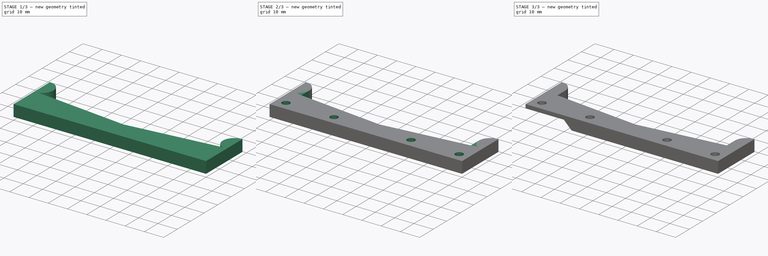
[diagram: build sequence overview — one tinted view per stage of 3, left to right]
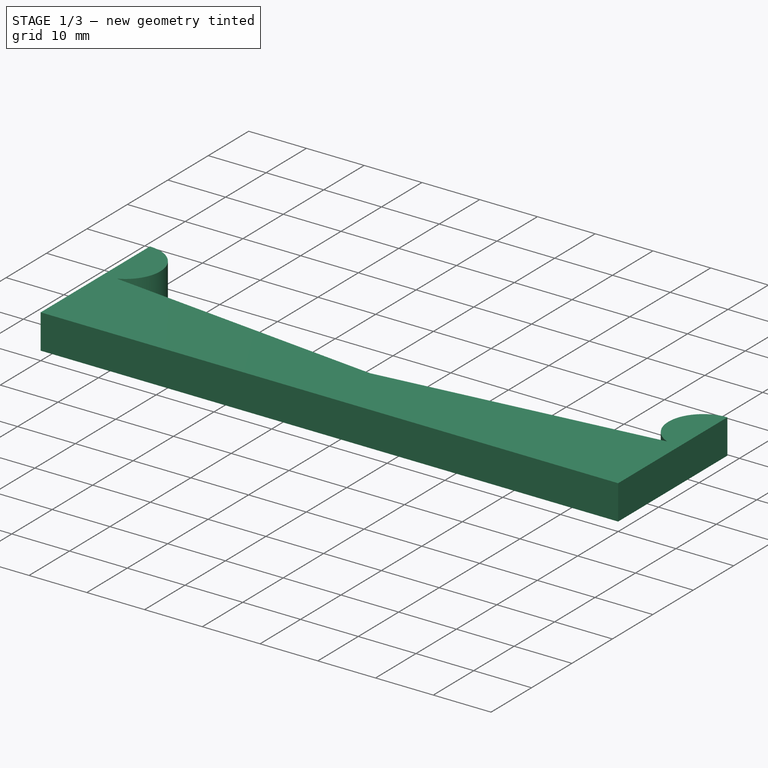
[diagram: stage 1 of 3 — iso view after this stage's code; geometry added in this stage tinted green]
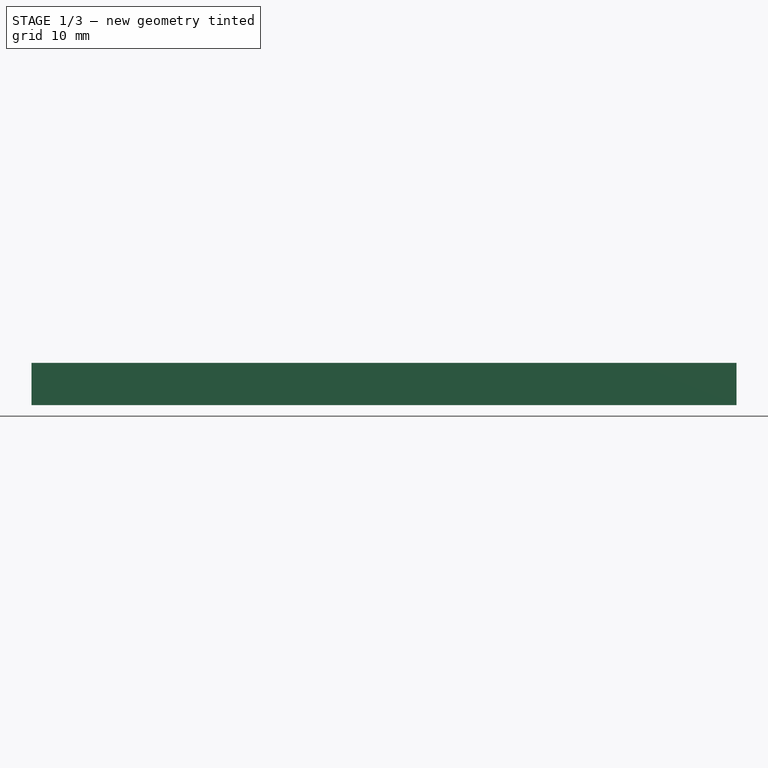
[diagram: stage 1 of 3 — front view after this stage's code; geometry added in this stage tinted green]
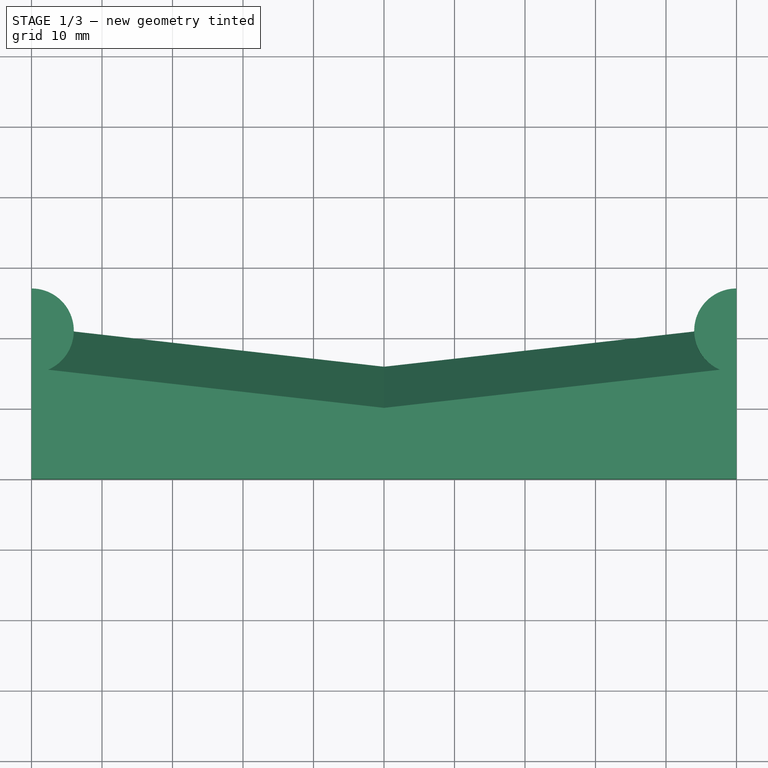
[diagram: stage 1 of 3 — top view after this stage's code; geometry added in this stage tinted green]
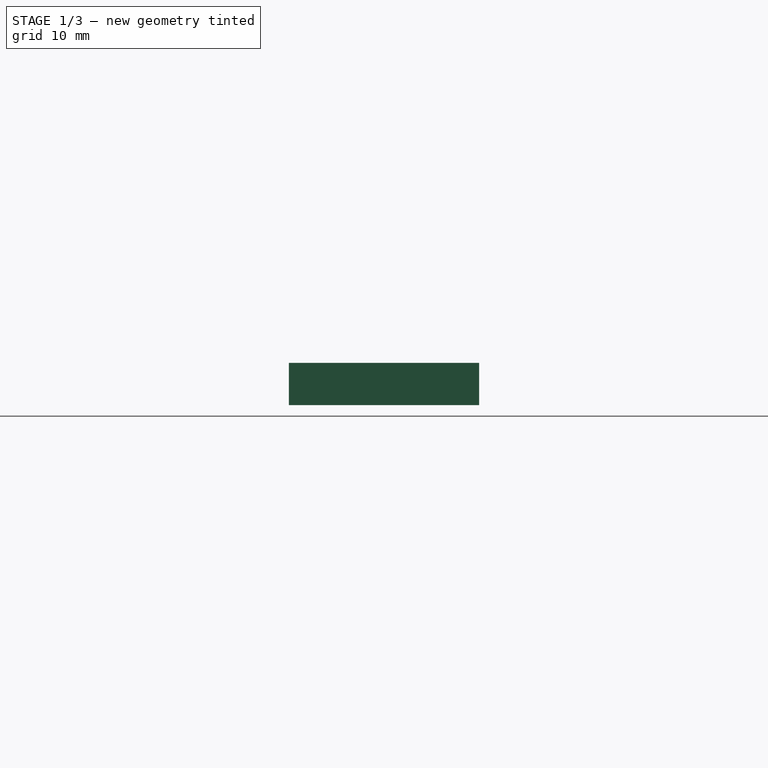
[diagram: stage 1 of 3 — right view after this stage's code; geometry added in this stage tinted green]
FCSTD DOCUMENT  (FreeCAD 0.16R5861 (Git))
Label: x_carriage_guide_v2
License: All rights reserved
LicenseURL: http://en.wikipedia.org/wiki/All_rights_reserved
objects: Sketcher::SketchObject×4, PartDesign::Pad×2, PartDesign::Chamfer×2, PartDesign::Pocket×2
note: 14 computed .brp shape members not serialized (recipe doc carries the construction recipe); baked Part::Feature solids carry a one-line shape summary decoded from their .brp

FEATURE [Sketcher::SketchObject] Sketch
  sketch-geometry (8):
    g0: LineSegment StartX=0 StartY=0 StartZ=0 EndX=100 EndY=0 EndZ=0
    g1: LineSegment StartX=100 StartY=0 StartZ=0 EndX=100 EndY=27 EndZ=0
    g2: LineSegment StartX=0 StartY=0 StartZ=0 EndX=0 EndY=27 EndZ=0
    g3: GeomPoint [constr] X=50 Y=16 Z=0
    g4: LineSegment StartX=50 StartY=16 StartZ=0 EndX=94 EndY=21 EndZ=0
    g5: LineSegment StartX=50 StartY=16 StartZ=0 EndX=6 EndY=21 EndZ=0
    g6: ArcOfCircle CenterX=0 CenterY=21 CenterZ=0 NormalX=0 NormalY=0 NormalZ=1 Radius=6 StartAngle=0 EndAngle=1.5708
    g7: ArcOfCircle CenterX=100 CenterY=21 CenterZ=0 NormalX=0 NormalY=0 NormalZ=1 Radius=6 StartAngle=1.5708 EndAngle=3.14159
  constraints (23):
    c: Coincident(g0,g-1)
    c: PointOnObject(g0,g-1)
    c: DistanceX(g-1,g0) = 100
    c: Coincident(g1,g0)
    c: Vertical(g1)
    c: Coincident(g2,g-1)
    c: Vertical(g2)
    c: DistanceY(g-1,g2) = 27
    c: DistanceY(g1,g0) = -27
    c: Coincident(g4,g3)
    c: Coincident(g5,g3)
    c: DistanceY(g-1,g3) = 16
    c: DistanceX(g-1,g3) = 50
    c: Coincident(g6,g5)
    c: Coincident(g6,g2)
    c: PointOnObject(g6,g2)
    c: PointOnObject(g7,g1)
    c: Coincident(g7,g4)
    c: Coincident(g7,g1)
    c: DistanceX(g4,g5) = -88
    c: DistanceX(g-1,g5) = 6
    c: DistanceY(g4,g0) = -21
    c: DistanceY(g-1,g5) = 21
FEATURE [PartDesign::Pad] Pad
  Length = 6
  Length2 = 100
  Sketch = -> Sketch
  Type = 0
FEATURE [PartDesign::Chamfer] Chamfer
  Base = -> Pad [Edge4,Edge21]
  Size = 5.9
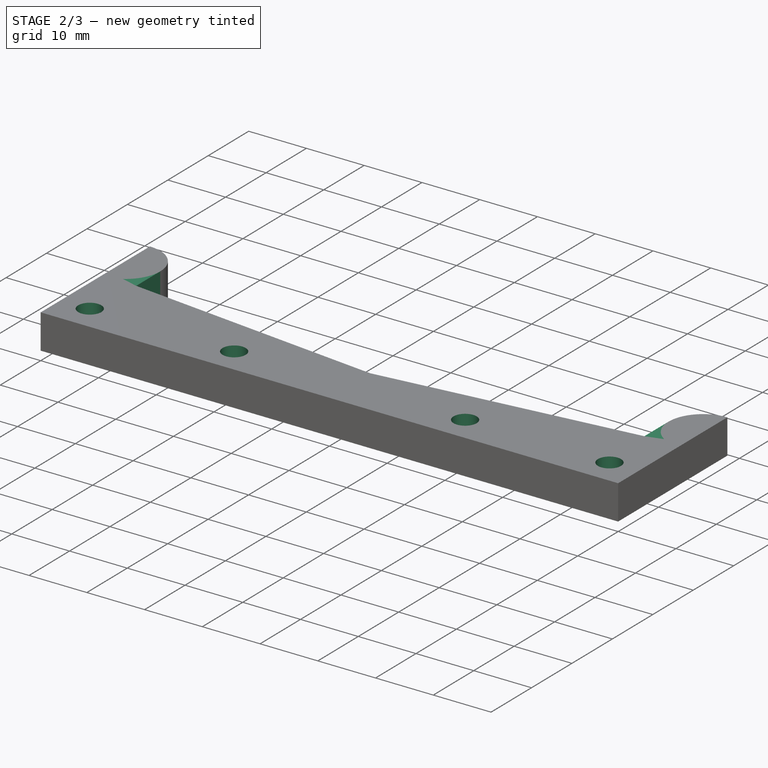
[diagram: stage 2 of 3 — iso view after this stage's code; geometry added in this stage tinted green]
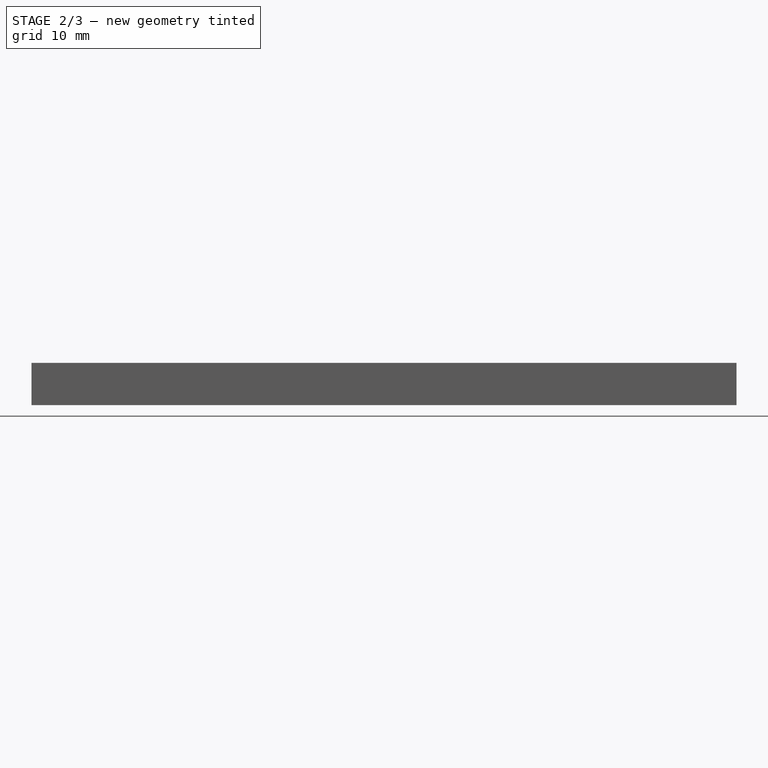
[diagram: stage 2 of 3 — front view after this stage's code; geometry added in this stage tinted green]
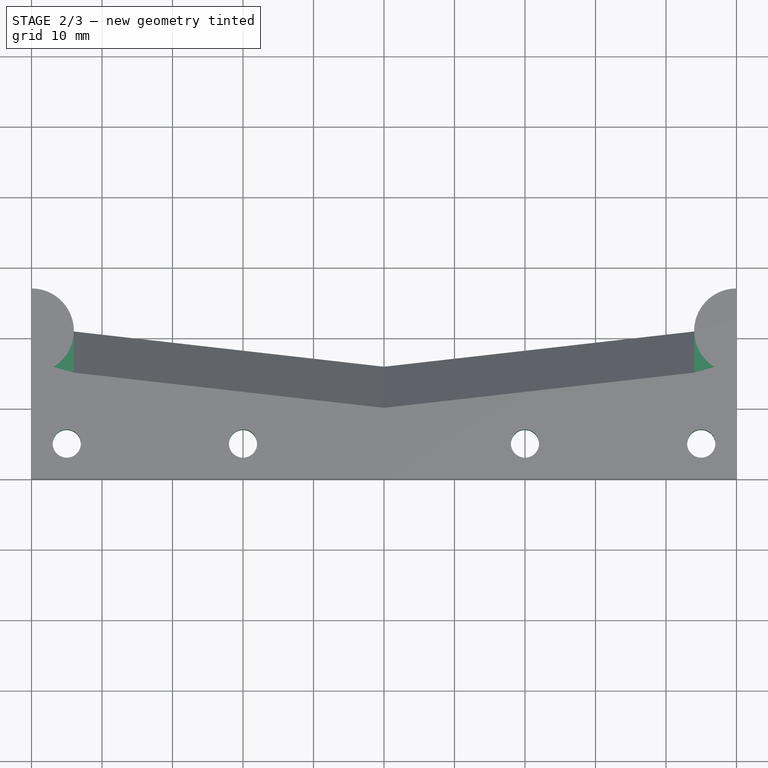
[diagram: stage 2 of 3 — top view after this stage's code; geometry added in this stage tinted green]
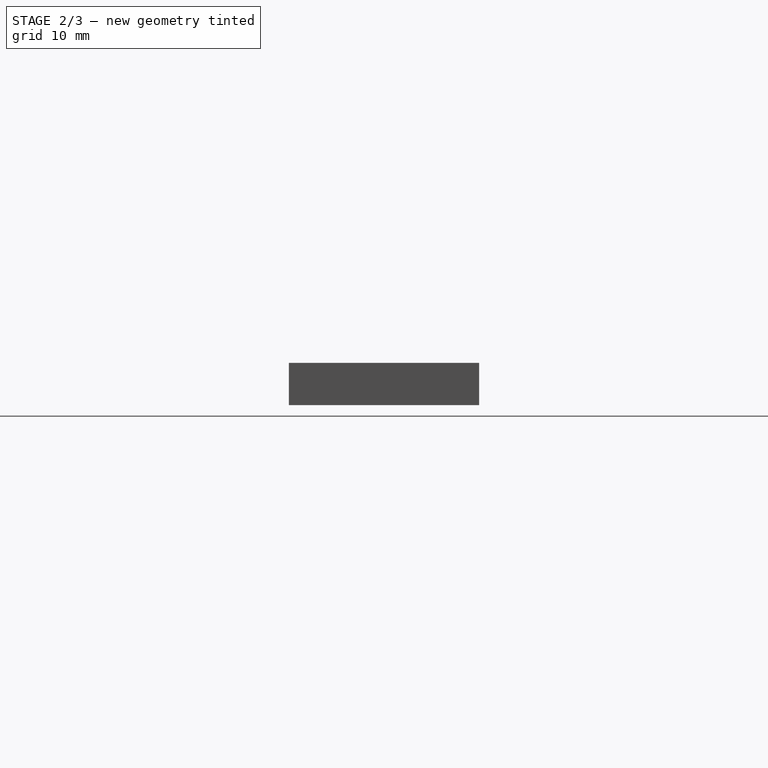
[diagram: stage 2 of 3 — right view after this stage's code; geometry added in this stage tinted green]
FEATURE [Sketcher::SketchObject] Sketch002
  Placement = pos=(0,0,6) rot=(0,0,1;0rad)
  Support = -> Chamfer [Face8]
  sketch-geometry (9):
    g0: LineSegment [constr] StartX=0 StartY=5 StartZ=0 EndX=5 EndY=5 EndZ=0
    g1: LineSegment [constr] StartX=5 StartY=0 StartZ=0 EndX=5 EndY=5 EndZ=0
    g2: Circle CenterX=5 CenterY=5 CenterZ=0 NormalX=0 NormalY=0 NormalZ=1 Radius=2
    g3: LineSegment [constr] StartX=0 StartY=5 StartZ=0 EndX=30 EndY=5 EndZ=0
    g4: Circle CenterX=30 CenterY=5 CenterZ=0 NormalX=0 NormalY=0 NormalZ=1 Radius=2
    g5: LineSegment [constr] StartX=0 StartY=5 StartZ=0 EndX=70 EndY=5 EndZ=0
    g6: LineSegment [constr] StartX=0 StartY=5 StartZ=0 EndX=95 EndY=5 EndZ=0
    g7: Circle CenterX=70 CenterY=5 CenterZ=0 NormalX=0 NormalY=0 NormalZ=1 Radius=2
    g8: Circle CenterX=95 CenterY=5 CenterZ=0 NormalX=0 NormalY=0 NormalZ=1 Radius=2
  constraints (24):
    c: PointOnObject(g0,g-2)
    c: Horizontal(g0)
    c: PointOnObject(g1,g-1)
    c: Coincident(g1,g0)
    c: Parallel(g1,g-2)
    c: DistanceX(g0,g0) = -5
    c: DistanceY(g1,g0) = 5
    c: Radius(g2) = 2
    c: Coincident(g2,g0)
    c: Coincident(g3,g0)
    c: Horizontal(g3)
    c: DistanceX(g3) = 30
    c: Coincident(g4,g3)
    c: Radius(g4) = 2
    c: Coincident(g5,g0)
    c: Horizontal(g5)
    c: DistanceX(g5) = 70
    c: Coincident(g6,g0)
    c: Horizontal(g6)
    c: DistanceX(g6) = 95
    c: Coincident(g7,g5)
    c: Coincident(g8,g6)
    c: Radius(g7) = 2
    c: Radius(g8) = 2
FEATURE [PartDesign::Pocket] Pocket
  Length = 7
  Sketch = -> Sketch002
  Type = 1
FEATURE [Sketcher::SketchObject] Sketch003
  ExternalGeometry = -> [Pocket]
  Placement = pos=(0,0,6) rot=(0,0,1;0rad)
  Support = -> Pocket [Face8]
  sketch-geometry (8):
    g0: LineSegment StartX=0 StartY=11 StartZ=0 EndX=6 EndY=11 EndZ=0
    g1: LineSegment StartX=6 StartY=11 StartZ=0 EndX=6 EndY=21 EndZ=0
    g2: LineSegment StartX=6 StartY=21 StartZ=0 EndX=0 EndY=21 EndZ=0
    g3: LineSegment StartX=0 StartY=21 StartZ=0 EndX=0 EndY=11 EndZ=0
    g4: LineSegment StartX=94 StartY=11 StartZ=0 EndX=100 EndY=11 EndZ=0
    g5: LineSegment StartX=100 StartY=11 StartZ=0 EndX=100 EndY=21 EndZ=0
    g6: LineSegment StartX=100 StartY=21 StartZ=0 EndX=94 EndY=21 EndZ=0
    g7: LineSegment StartX=94 StartY=21 StartZ=0 EndX=94 EndY=11 EndZ=0
  constraints (22):
    c: Coincident(g0,g1)
    c: Coincident(g1,g2)
    c: Coincident(g2,g3)
    c: Coincident(g3,g0)
    c: Horizontal(g0)
    c: Horizontal(g2)
    c: Vertical(g1)
    c: Vertical(g3)
    c: Coincident(g4,g5)
    c: Coincident(g5,g6)
    c: Coincident(g6,g7)
    c: Coincident(g7,g4)
    c: Horizontal(g4)
    c: Horizontal(g6)
    c: Vertical(g5)
    c: Vertical(g7)
    c: Coincident(g2,g-3)
    c: Coincident(g1,g-3)
    c: DistanceY(g1,g0) = -10
    c: Coincident(g5,g-4)
    c: Coincident(g6,g-4)
    c: DistanceY(g4,g6) = 10
FEATURE [PartDesign::Pad] Pad001
  Length = 6
  Length2 = 100
  Reversed = true
  Sketch = -> Sketch003
  Type = 0
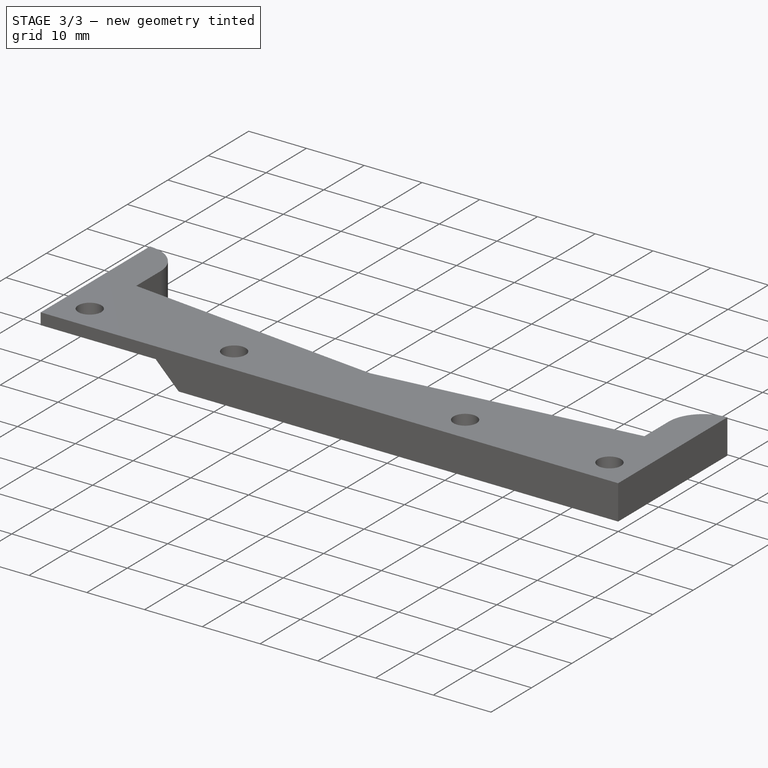
[diagram: stage 3 of 3 — iso view after this stage's code; geometry added in this stage tinted green]
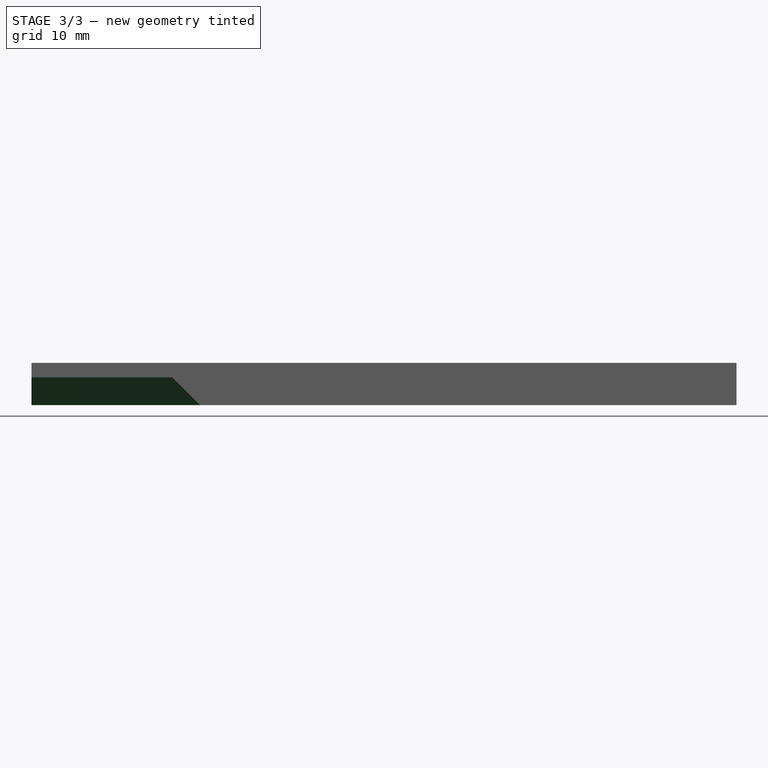
[diagram: stage 3 of 3 — front view after this stage's code; geometry added in this stage tinted green]
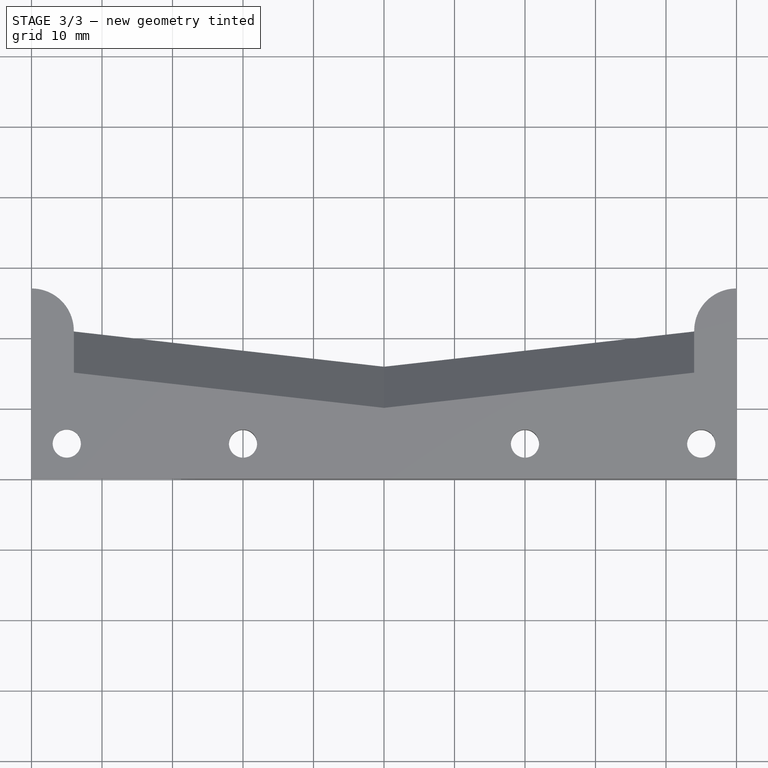
[diagram: stage 3 of 3 — top view after this stage's code; geometry added in this stage tinted green]
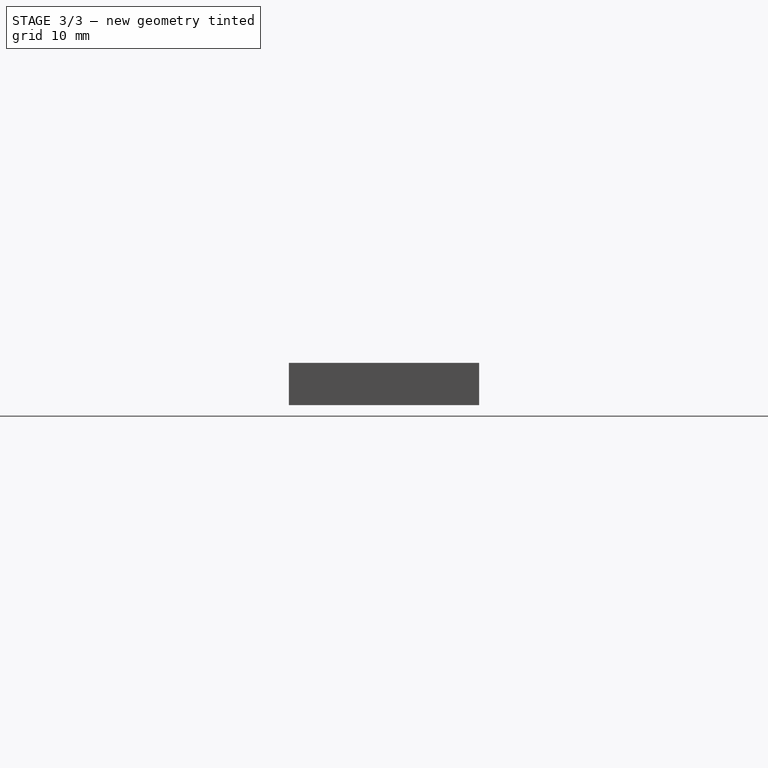
[diagram: stage 3 of 3 — right view after this stage's code; geometry added in this stage tinted green]
FEATURE [Sketcher::SketchObject] Sketch004
  ExternalGeometry = -> [Pad001]
  Placement = pos=(0,0,0) rot=(1,0,0;3.14159rad)
  Support = -> Pad001 [Face4]
  sketch-geometry (4):
    g0: LineSegment StartX=0 StartY=0 StartZ=0 EndX=0 EndY=-15 EndZ=0
    g1: LineSegment StartX=0 StartY=-15 StartZ=0 EndX=20 EndY=-12.7273 EndZ=0
    g2: LineSegment StartX=20 StartY=-12.7273 StartZ=0 EndX=20 EndY=0 EndZ=0
    g3: LineSegment StartX=20 StartY=0 StartZ=0 EndX=0 EndY=0 EndZ=0
  constraints (11):
    c: Coincident(g-1,g0)
    c: PointOnObject(g0,g-2)
    c: Coincident(g0,g1)
    c: Coincident(g1,g2)
    c: PointOnObject(g2,g-1)
    c: Vertical(g2)
    c: Coincident(g2,g3)
    c: Coincident(g3,g0)
    c: Parallel(g1,g-3)
    c: DistanceX(g-1,g2) = 20
    c: DistanceY(g-1,g0) = -15
FEATURE [PartDesign::Pocket] Pocket001
  Length = 4
  Sketch = -> Sketch004
  Type = 0
FEATURE [PartDesign::Chamfer] Chamfer001
  Base = -> Pocket001 [Edge42,Edge18,Edge13]
  Size = 3.9
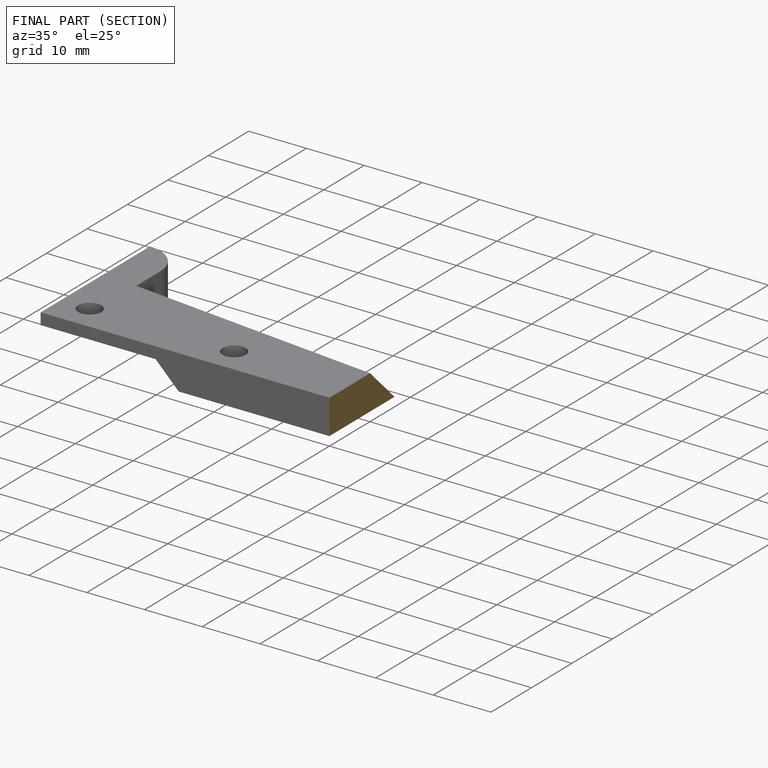
[diagram: finished part — half-section view (interior)]
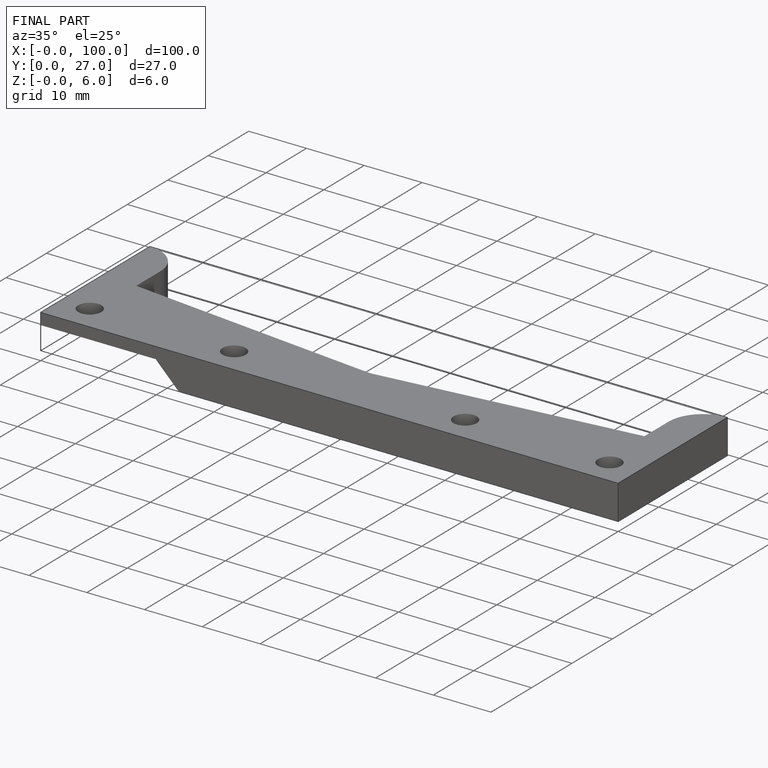
[diagram: finished part — iso view with bounding-box wireframe]
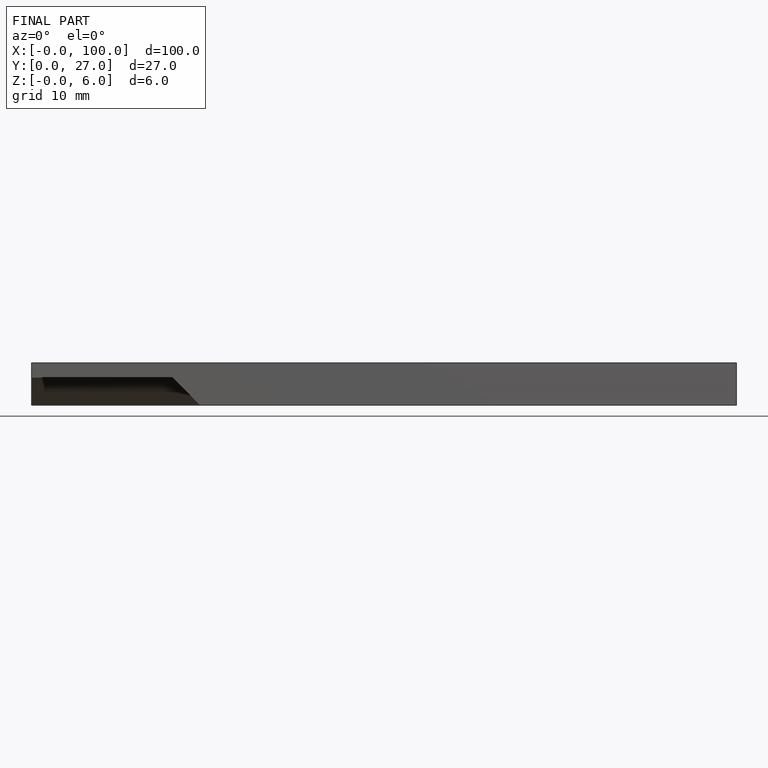
[diagram: finished part — front view with bounding-box wireframe]
